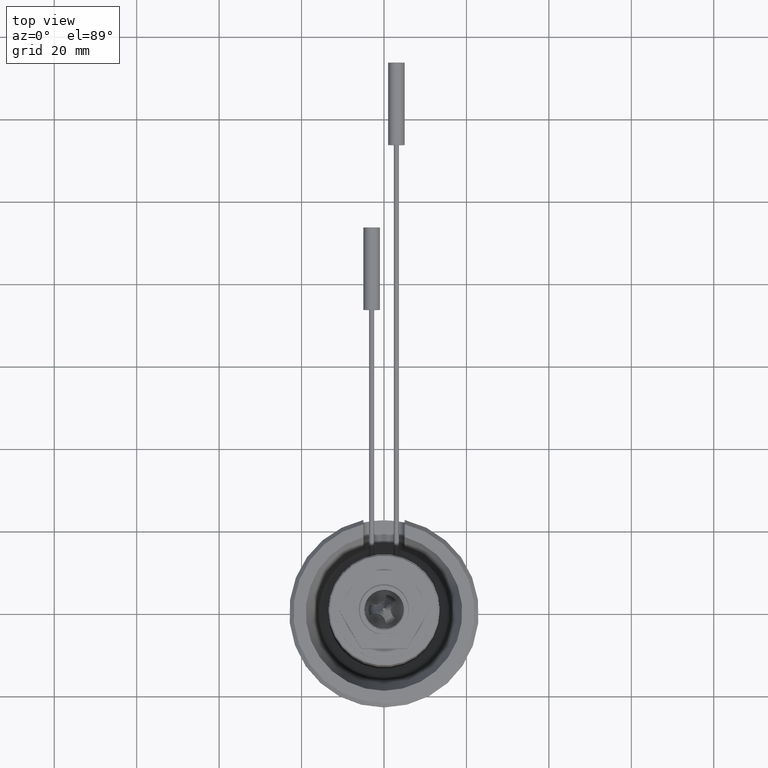
[diagram: clean part render]
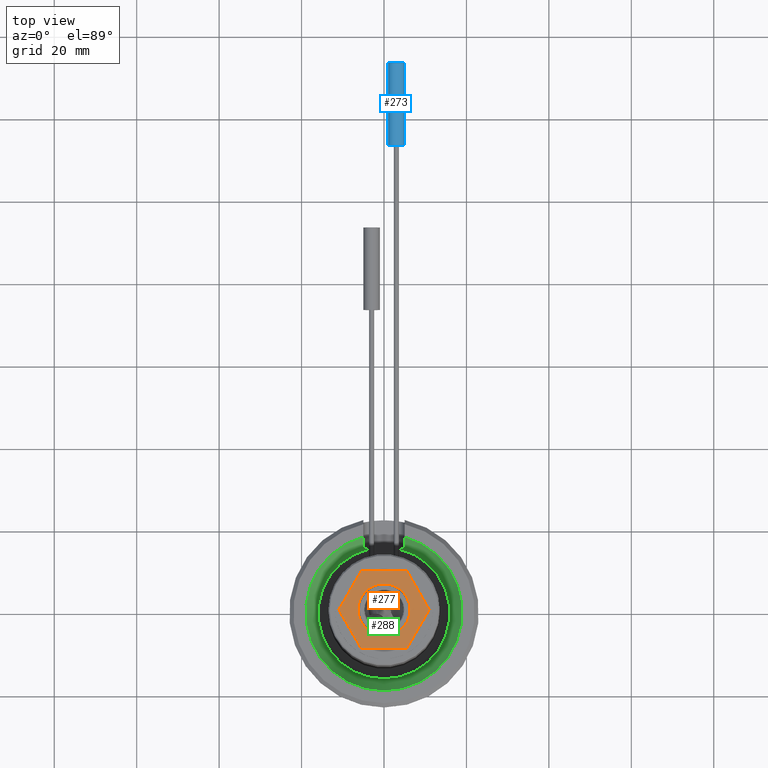
[diagram: same view with three faces highlighted in distinct colors, each labeled with its STEP entity id]
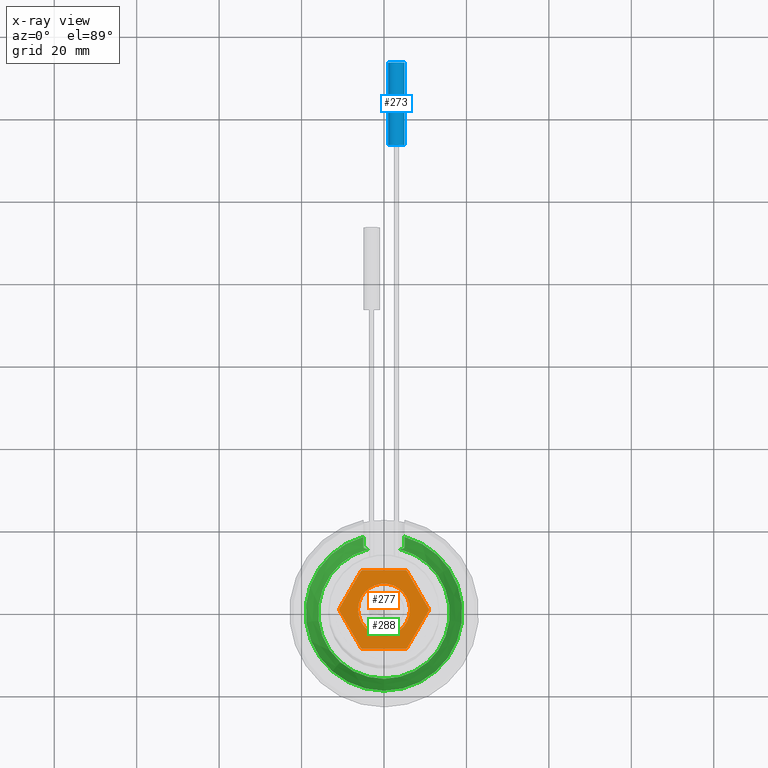
[diagram: x-ray of the same camera — body ghosted, the three highlighted faces saturated]
A machine part, top view with three faces highlighted in distinct colors.
The next image is the same camera in x-ray (body ghosted, the three faces saturated) — at least one of them is partly hidden behind the body in this view.
Their STEP definitions:

[orange] entity #277 — the highlighted planar face has unit normal (0, 0, -1).
#31=LINE('',#1669,#75);
#32=LINE('',#1674,#76);
#33=LINE('',#1678,#77);
#34=LINE('',#1682,#78);
#35=LINE('',#1686,#79);
#36=LINE('',#1690,#80);
#75=VECTOR('',#1294,1.);
#76=VECTOR('',#1297,1.);
#77=VECTOR('',#1300,1.);
#78=VECTOR('',#1303,1.);
#79=VECTOR('',#1306,1.);
#80=VECTOR('',#1309,1.);
#194=PLANE('',#1136);
#277=ADVANCED_FACE('',(#373,#374),#194,.F.);
#373=FACE_BOUND('',#441,.T.);
#374=FACE_BOUND('',#442,.T.);
#441=EDGE_LOOP('',(#553));
#442=EDGE_LOOP('',(#554,#555,#556,#557,#558,#559,#560,#561,#562,#563,#564,
#565));
#553=ORIENTED_EDGE('',*,*,#907,.T.);
#554=ORIENTED_EDGE('',*,*,#908,.F.);
#555=ORIENTED_EDGE('',*,*,#909,.T.);
#556=ORIENTED_EDGE('',*,*,#910,.F.);
#557=ORIENTED_EDGE('',*,*,#911,.T.);
#558=ORIENTED_EDGE('',*,*,#912,.F.);
#559=ORIENTED_EDGE('',*,*,#913,.T.);
#560=ORIENTED_EDGE('',*,*,#914,.F.);
#561=ORIENTED_EDGE('',*,*,#915,.T.);
#562=ORIENTED_EDGE('',*,*,#916,.F.);
#563=ORIENTED_EDGE('',*,*,#917,.T.);
#564=ORIENTED_EDGE('',*,*,#918,.F.);
#565=ORIENTED_EDGE('',*,*,#919,.T.);
#809=VERTEX_POINT('',#1668);
#810=VERTEX_POINT('',#1670);
#811=VERTEX_POINT('',#1671);
#812=VERTEX_POINT('',#1673);
#813=VERTEX_POINT('',#1675);
#814=VERTEX_POINT('',#1677);
#815=VERTEX_POINT('',#1679);
#816=VERTEX_POINT('',#1681);
#817=VERTEX_POINT('',#1683);
#818=VERTEX_POINT('',#1685);
#819=VERTEX_POINT('',#1687);
#820=VERTEX_POINT('',#1689);
#821=VERTEX_POINT('',#1691);
#907=EDGE_CURVE('',#809,#809,#1035,.T.);
#908=EDGE_CURVE('',#810,#811,#31,.T.);
#909=EDGE_CURVE('',#810,#812,#1036,.T.);
#910=EDGE_CURVE('',#813,#812,#32,.T.);
#911=EDGE_CURVE('',#813,#814,#1037,.T.);
#912=EDGE_CURVE('',#815,#814,#33,.T.);
#913=EDGE_CURVE('',#815,#816,#1038,.T.);
#914=EDGE_CURVE('',#817,#816,#34,.T.);
#915=EDGE_CURVE('',#817,#818,#1039,.T.);
#916=EDGE_CURVE('',#819,#818,#35,.T.);
#917=EDGE_CURVE('',#819,#820,#1040,.T.);
#918=EDGE_CURVE('',#821,#820,#36,.T.);
#919=EDGE_CURVE('',#821,#811,#1041,.T.);
#1035=CIRCLE('',#1129,6.3);
#1036=CIRCLE('',#1130,10.9);
#1037=CIRCLE('',#1131,10.9);
#1038=CIRCLE('',#1132,10.9);
#1039=CIRCLE('',#1133,10.9);
#1040=CIRCLE('',#1134,10.9);
#1041=CIRCLE('',#1135,10.9);
#1129=AXIS2_PLACEMENT_3D('',#1667,#1292,#1293);
#1130=AXIS2_PLACEMENT_3D('',#1672,#1295,#1296);
#1131=AXIS2_PLACEMENT_3D('',#1676,#1298,#1299);
#1132=AXIS2_PLACEMENT_3D('',#1680,#1301,#1302);
#1133=AXIS2_PLACEMENT_3D('',#1684,#1304,#1305);
#1134=AXIS2_PLACEMENT_3D('',#1688,#1307,#1308);
#1135=AXIS2_PLACEMENT_3D('',#1692,#1310,#1311);
#1136=AXIS2_PLACEMENT_3D('',#1693,#1312,#1313);
#1292=DIRECTION('',(0.,0.,-1.));
#1293=DIRECTION('',(-1.,0.,0.));
#1294=DIRECTION('',(-0.500000000000003,0.866025403784437,0.));
#1295=DIRECTION('',(0.,0.,1.));
#1296=DIRECTION('',(1.,0.,0.));
#1297=DIRECTION('',(-1.,-2.27221380597914E-15,0.));
#1298=DIRECTION('',(0.,0.,1.));
#1299=DIRECTION('',(1.,0.,0.));
#1300=DIRECTION('',(-0.499999999999999,-0.866025403784439,0.));
#1301=DIRECTION('',(0.,0.,1.));
#1302=DIRECTION('',(1.,0.,0.));
#1303=DIRECTION('',(0.500000000000001,-0.866025403784438,0.));
#1304=DIRECTION('',(0.,0.,1.));
#1305=DIRECTION('',(1.,0.,0.));
#1306=DIRECTION('',(1.,0.,0.));
#1307=DIRECTION('',(0.,0.,1.));
#1308=DIRECTION('',(1.,0.,0.));
#1309=DIRECTION('',(0.499999999999996,0.866025403784441,0.));
#1310=DIRECTION('',(0.,0.,1.));
#1311=DIRECTION('',(1.,0.,0.));
#1312=DIRECTION('',(0.,0.,-1.));
#1313=DIRECTION('',(-1.,0.,0.));
#1667=CARTESIAN_POINT('',(0.,0.,63.7000000000001));
#1668=CARTESIAN_POINT('',(-6.3,0.,63.7000000000001));
#1669=CARTESIAN_POINT('',(-5.55516349277466,-9.37817458616247,63.7000000000001));
#1670=CARTESIAN_POINT('',(-5.55516349277466,-9.37817458616247,63.7000000000001));
#1671=CARTESIAN_POINT('',(-10.8993191791296,-0.121825413837578,63.7000000000001));
#1672=CARTESIAN_POINT('',(0.,0.,63.7000000000001));
#1673=CARTESIAN_POINT('',(-5.34415568635493,-9.50000000000001,63.7000000000001));
#1674=CARTESIAN_POINT('',(5.34415568635498,-9.49999999999999,63.7000000000001));
#1675=CARTESIAN_POINT('',(5.34415568635498,-9.49999999999999,63.7000000000001));
#1676=CARTESIAN_POINT('',(0.,0.,63.7000000000001));
#1677=CARTESIAN_POINT('',(5.5551634927747,-9.37817458616245,63.7000000000001));
#1678=CARTESIAN_POINT('',(10.8993191791296,-0.121825413837527,63.7000000000001));
#1679=CARTESIAN_POINT('',(10.8993191791296,-0.121825413837527,63.7000000000001));
#1680=CARTESIAN_POINT('',(0.,0.,63.7000000000001));
#1681=CARTESIAN_POINT('',(10.8993191791296,0.121825413837552,63.7000000000001));
#1682=CARTESIAN_POINT('',(5.55516349277468,9.37817458616246,63.7000000000001));
#1683=CARTESIAN_POINT('',(5.55516349277468,9.37817458616246,63.7000000000001));
#1684=CARTESIAN_POINT('',(0.,0.,63.7000000000001));
#1685=CARTESIAN_POINT('',(5.34415568635496,9.5,63.7000000000001));
#1686=CARTESIAN_POINT('',(-5.34415568635496,9.5,63.7000000000001));
#1687=CARTESIAN_POINT('',(-5.34415568635495,9.5,63.7000000000001));
#1688=CARTESIAN_POINT('',(0.,0.,63.7000000000001));
#1689=CARTESIAN_POINT('',(-5.55516349277473,9.37817458616243,63.7000000000001));
#1690=CARTESIAN_POINT('',(-10.8993191791296,0.121825413837499,63.7000000000001));
#1691=CARTESIAN_POINT('',(-10.8993191791296,0.121825413837501,63.7000000000001));
#1692=CARTESIAN_POINT('',(0.,0.,63.7000000000001));
#1693=CARTESIAN_POINT('',(-6.,0.,63.7000000000001));

[blue] entity #273 — the highlighted cylindrical surface (bore or boss wall) has radius 2 mm, axis along (0, -1, 0).
#273=ADVANCED_FACE('',(#369,#370),#344,.T.);
#344=CYLINDRICAL_SURFACE('',#1121,2.);
#369=FACE_BOUND('',#435,.T.);
#370=FACE_BOUND('',#436,.T.);
#435=EDGE_LOOP('',(#542));
#436=EDGE_LOOP('',(#543));
#542=ORIENTED_EDGE('',*,*,#898,.F.);
#543=ORIENTED_EDGE('',*,*,#899,.T.);
#800=VERTEX_POINT('',#1595);
#801=VERTEX_POINT('',#1597);
#898=EDGE_CURVE('',#800,#800,#1029,.T.);
#899=EDGE_CURVE('',#801,#801,#1030,.T.);
#1029=CIRCLE('',#1119,2.);
#1030=CIRCLE('',#1120,2.);
#1119=AXIS2_PLACEMENT_3D('',#1594,#1272,#1273);
#1120=AXIS2_PLACEMENT_3D('',#1596,#1274,#1275);
#1121=AXIS2_PLACEMENT_3D('',#1598,#1276,#1277);
#1272=DIRECTION('',(0.,1.,0.));
#1273=DIRECTION('',(1.,0.,0.));
#1274=DIRECTION('',(0.,1.,0.));
#1275=DIRECTION('',(1.,0.,0.));
#1276=DIRECTION('',(0.,-1.,0.));
#1277=DIRECTION('',(0.,0.,-0.999999999999999));
#1594=CARTESIAN_POINT('',(3.,133.5,18.5));
#1595=CARTESIAN_POINT('',(5.,133.5,18.5));
#1596=CARTESIAN_POINT('',(3.,113.5,18.5));
#1597=CARTESIAN_POINT('',(5.,113.5,18.5));
#1598=CARTESIAN_POINT('',(3.,133.5,18.5));

[green] entity #288 — the highlighted conical surface has half-angle 18.76 deg.
#120=CONICAL_SURFACE('',#1165,15.9573329734641,18.7599999999998);
#139=B_SPLINE_CURVE_WITH_KNOTS('',3,(#1836,#1837,#1838,#1839,#1840,#1841,
#1842,#1843,#1844,#1845),.UNSPECIFIED.,.F.,.F.,(4,3,3,4),(0.,0.32770799258652,
0.655290656848575,1.),.UNSPECIFIED.);
#140=B_SPLINE_CURVE_WITH_KNOTS('',3,(#1847,#1848,#1849,#1850,#1851,#1852,
#1853),.UNSPECIFIED.,.F.,.F.,(4,3,4),(0.,0.718508524364149,1.),
 .UNSPECIFIED.);
#141=B_SPLINE_CURVE_WITH_KNOTS('',3,(#1857,#1858,#1859,#1860),
 .UNSPECIFIED.,.F.,.F.,(4,4),(0.,1.),.UNSPECIFIED.);
#142=B_SPLINE_CURVE_WITH_KNOTS('',3,(#1862,#1863,#1864,#1865,#1866,#1867,
#1868,#1869,#1870,#1871),.UNSPECIFIED.,.F.,.F.,(4,3,3,4),(0.,0.347353954695441,
0.696050717213932,1.),.UNSPECIFIED.);
#237=FACE_OUTER_BOUND('',#456,.T.);
#288=ADVANCED_FACE('',(#237),#120,.F.);
#456=EDGE_LOOP('',(#617,#618,#619,#620,#621,#622));
#617=ORIENTED_EDGE('',*,*,#961,.T.);
#618=ORIENTED_EDGE('',*,*,#963,.T.);
#619=ORIENTED_EDGE('',*,*,#964,.T.);
#620=ORIENTED_EDGE('',*,*,#965,.T.);
#621=ORIENTED_EDGE('',*,*,#966,.T.);
#622=ORIENTED_EDGE('',*,*,#967,.T.);
#855=VERTEX_POINT('',#1819);
#856=VERTEX_POINT('',#1821);
#857=VERTEX_POINT('',#1846);
#858=VERTEX_POINT('',#1854);
#859=VERTEX_POINT('',#1856);
#860=VERTEX_POINT('',#1861);
#961=EDGE_CURVE('',#856,#855,#1058,.T.);
#963=EDGE_CURVE('',#855,#857,#139,.T.);
#964=EDGE_CURVE('',#857,#858,#140,.T.);
#965=EDGE_CURVE('',#858,#859,#1059,.T.);
#966=EDGE_CURVE('',#859,#860,#141,.T.);
#967=EDGE_CURVE('',#860,#856,#142,.T.);
#1058=CIRCLE('',#1162,15.9573329734641);
#1059=CIRCLE('',#1164,18.9996646888082);
#1162=AXIS2_PLACEMENT_3D('',#1820,#1386,#1387);
#1164=AXIS2_PLACEMENT_3D('',#1855,#1390,#1391);
#1165=AXIS2_PLACEMENT_3D('',#1872,#1392,#1393);
#1386=DIRECTION('',(0.,0.,-1.));
#1387=DIRECTION('',(1.,0.,0.));
#1390=DIRECTION('',(0.,0.,1.));
#1391=DIRECTION('',(1.,0.,0.));
#1392=DIRECTION('',(0.,0.,1.));
#1393=DIRECTION('',(1.,0.,2.53667142699091E-16));
#1819=CARTESIAN_POINT('',(-3.72097542148827,15.5174359202378,16.0427162152864));
#1820=CARTESIAN_POINT('',(0.,0.,16.0427162152864));
#1821=CARTESIAN_POINT('',(3.72097542148828,15.5174359202378,16.0427162152864));
#1836=CARTESIAN_POINT('',(-3.72097542148827,15.5174359202378,16.0427162152864));
#1837=CARTESIAN_POINT('',(-3.98277157782718,15.5186992617101,16.2260669350134));
#1838=CARTESIAN_POINT('',(-4.21794760816638,15.5359287078045,16.4551172760731));
#1839=CARTESIAN_POINT('',(-4.40742427691912,15.572251740747,16.7099418023773));
#1840=CARTESIAN_POINT('',(-4.59687494830943,15.6085697899463,16.9647313651917));
#1841=CARTESIAN_POINT('',(-4.74573847444864,15.6651424485488,17.2519921280415));
#1842=CARTESIAN_POINT('',(-4.84450453067003,15.739471852835,17.5466931370387));
#1843=CARTESIAN_POINT('',(-4.94842189203484,15.8176780287293,17.8567647589923));
#1844=CARTESIAN_POINT('',(-4.999999999995,15.9175575952801,18.1832099799597));
#1845=CARTESIAN_POINT('',(-4.999999999995,16.0302674789854,18.5));
#1846=CARTESIAN_POINT('',(-4.999999999995,16.0302674789854,18.5));
#1847=CARTESIAN_POINT('',(-4.999999999995,16.0302674789854,18.5));
#1848=CARTESIAN_POINT('',(-4.99999999999501,16.5837981322374,20.0557906811021));
#1849=CARTESIAN_POINT('',(-4.99999999999501,17.1350924758848,21.6123779800152));
#1850=CARTESIAN_POINT('',(-4.99999999999501,17.6847176590897,23.1695526604799));
#1851=CARTESIAN_POINT('',(-4.99999999999501,17.9000466703584,23.7796136521579));
#1852=CARTESIAN_POINT('',(-4.99999999999501,18.1151171650184,24.3897659402078));
#1853=CARTESIAN_POINT('',(-4.99999999999501,18.3299552178175,25.));
#1854=CARTESIAN_POINT('',(-4.99999999999501,18.3299552178175,25.));
#1855=CARTESIAN_POINT('',(0.,0.,25.));
#1856=CARTESIAN_POINT('',(4.999999999995,18.3299552178175,25.));
#1857=CARTESIAN_POINT('',(4.999999999995,18.3299552178175,25.));
#1858=CARTESIAN_POINT('',(4.999999999995,17.56674202209,22.8321406247751));
#1859=CARTESIAN_POINT('',(4.99999999999501,16.8006554283944,20.6653044605249));
#1860=CARTESIAN_POINT('',(4.99999999999501,16.0302674789854,18.5));
#1861=CARTESIAN_POINT('',(4.99999999999501,16.0302674789854,18.5));
#1862=CARTESIAN_POINT('',(4.99999999999501,16.0302674789854,18.5));
#1863=CARTESIAN_POINT('',(4.99999999999501,15.9167119018971,18.1808330169557));
#1864=CARTESIAN_POINT('',(4.9476208680936,15.8161769555109,17.8518229738639));
#1865=CARTESIAN_POINT('',(4.8421232761929,15.7376900591994,17.5396171165134));
#1866=CARTESIAN_POINT('',(4.73637681698707,15.6590180134261,17.2266747700262));
#1867=CARTESIAN_POINT('',(4.57373545215272,15.6004690671847,16.9220537074497));
#1868=CARTESIAN_POINT('',(4.36614244084571,15.5647502097146,16.6557196662099));
#1869=CARTESIAN_POINT('',(4.18452917421592,15.5335014776663,16.4227166622082));
#1870=CARTESIAN_POINT('',(3.96430150647066,15.518610131268,16.2131312948421));
#1871=CARTESIAN_POINT('',(3.72097542148828,15.5174359202378,16.0427162152864));
#1872=CARTESIAN_POINT('',(0.,0.,16.0427162152864));